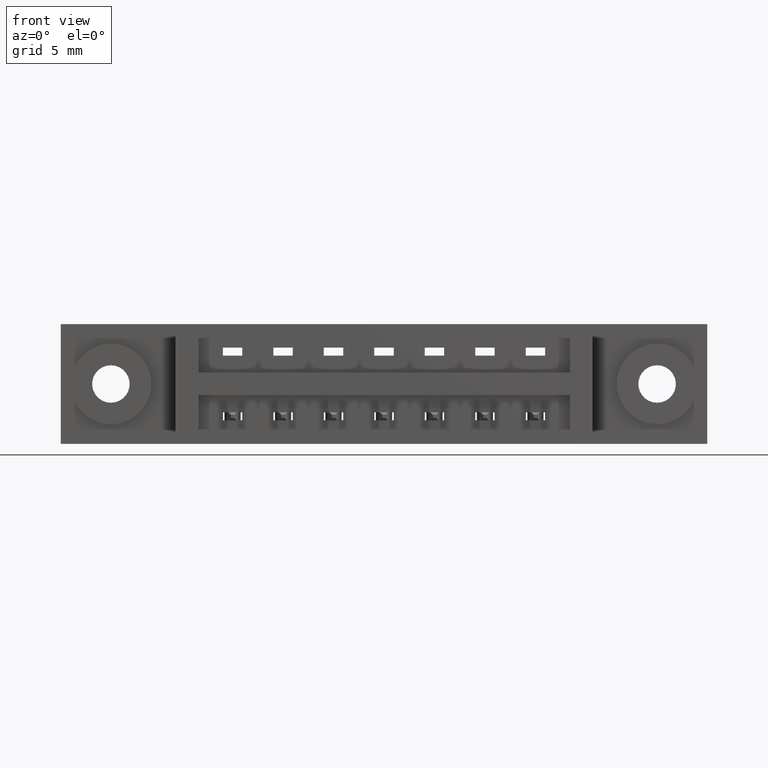
[diagram: clean part render]
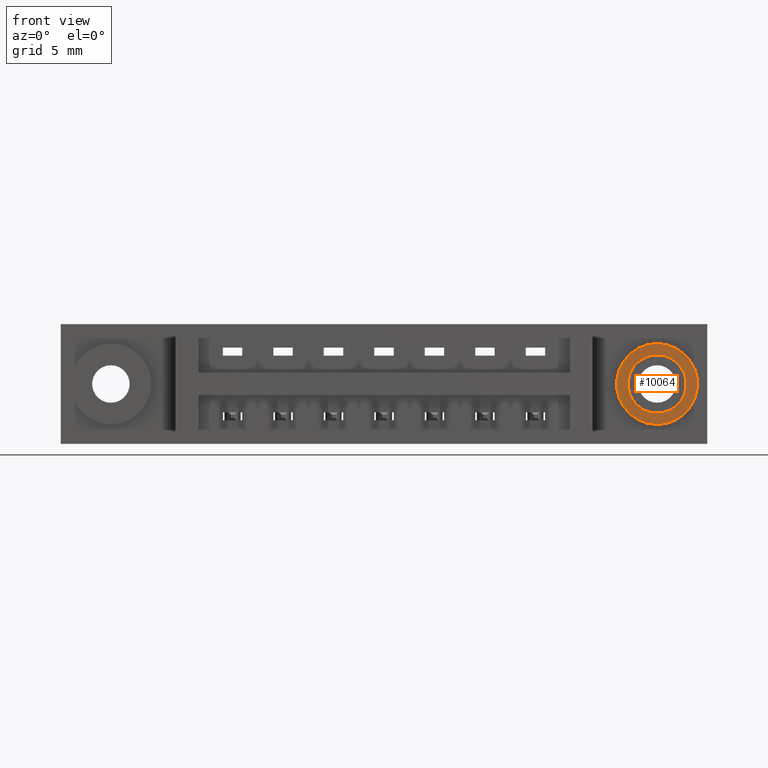
[diagram: same view with one face highlighted and labeled with its STEP entity id]
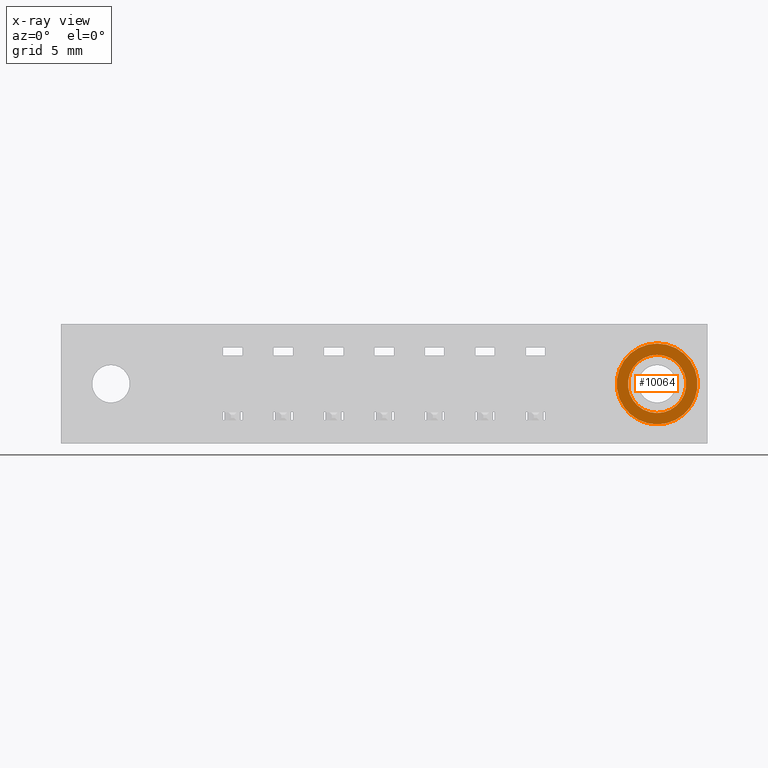
[diagram: x-ray of the same camera — body ghosted, the highlighted face saturated]
A machine part, front view. The second image highlights one B-rep face of the part: STEP entity #10064.
The next image is the same camera in x-ray: the body ghosted, the highlighted face saturated — about 0% of this face is hidden behind the body in this view.
In plain terms, the highlighted planar face has unit normal (-0, -1, -0).
Its self-contained STEP definition (entity closure, byte-faithful):
#204 = VERTEX_POINT ( 'NONE', #4138 ) ;
#605 = CIRCLE ( 'NONE', #6618, 0.08999999999999999700 ) ;
#670 = CARTESIAN_POINT ( 'NONE',  ( 1.530808498934192100E-017, 0.3049999999999998800, 0.1250000000000000600 ) ) ;
#894 = ORIENTED_EDGE ( 'NONE', *, *, #5120, .T. ) ;
#1329 = EDGE_LOOP ( 'NONE', ( #4483, #4257 ) ) ;
#1492 = CIRCLE ( 'NONE', #3806, 0.1250000000000000600 ) ;
#1575 = VERTEX_POINT ( 'NONE', #9321 ) ;
#1804 = CARTESIAN_POINT ( 'NONE',  ( 0.0000000000000000000, 0.3049999999999998800, 0.0000000000000000000 ) ) ;
#2233 = DIRECTION ( 'NONE',  ( -2.465190328815661900E-032, 1.000000000000000000, 0.0000000000000000000 ) ) ;
#2333 = DIRECTION ( 'NONE',  ( -3.408749858497504800E-034, 0.0000000000000000000, 1.000000000000000000 ) ) ;
#2585 = EDGE_CURVE ( 'NONE', #1575, #204, #4239, .T. ) ;
#2888 = ORIENTED_EDGE ( 'NONE', *, *, #9310, .T. ) ;
#3456 = DIRECTION ( 'NONE',  ( -3.408749858497505200E-034, 7.095886083921892200E-051, 1.000000000000000000 ) ) ;
#3716 = VERTEX_POINT ( 'NONE', #670 ) ;
#3806 = AXIS2_PLACEMENT_3D ( 'NONE', #5541, #8012, #2333 ) ;
#4055 = FACE_BOUND ( 'NONE', #1329, .T. ) ;
#4138 = CARTESIAN_POINT ( 'NONE',  ( 1.102182119232617900E-017, 0.3049999999999998800, -0.08999999999999999700 ) ) ;
#4162 = DIRECTION ( 'NONE',  ( 2.465190328815661900E-032, -1.000000000000000000, -0.0000000000000000000 ) ) ;
#4230 = EDGE_LOOP ( 'NONE', ( #2888, #894 ) ) ;
#4239 = CIRCLE ( 'NONE', #5865, 0.08999999999999999700 ) ;
#4257 = ORIENTED_EDGE ( 'NONE', *, *, #4691, .T. ) ;
#4483 = ORIENTED_EDGE ( 'NONE', *, *, #2585, .T. ) ;
#4539 = CARTESIAN_POINT ( 'NONE',  ( 0.0000000000000000000, 0.3049999999999998800, 0.0000000000000000000 ) ) ;
#4691 = EDGE_CURVE ( 'NONE', #204, #1575, #605, .T. ) ;
#4710 = CIRCLE ( 'NONE', #6407, 0.1250000000000000600 ) ;
#5007 = DIRECTION ( 'NONE',  ( -2.465190328815661900E-032, 1.000000000000000000, -7.095886083921900600E-051 ) ) ;
#5120 = EDGE_CURVE ( 'NONE', #3716, #9334, #4710, .T. ) ;
#5541 = CARTESIAN_POINT ( 'NONE',  ( 0.0000000000000000000, 0.3049999999999998800, 0.0000000000000000000 ) ) ;
#5745 = DIRECTION ( 'NONE',  ( -3.408749858497505600E-034, 0.0000000000000000000, 1.000000000000000000 ) ) ;
#5804 = PLANE ( 'NONE',  #9935 ) ;
#5865 = AXIS2_PLACEMENT_3D ( 'NONE', #6559, #4162, #5745 ) ;
#6145 = DIRECTION ( 'NONE',  ( 2.465190328815661900E-032, -1.000000000000000000, -0.0000000000000000000 ) ) ;
#6170 = CARTESIAN_POINT ( 'NONE',  ( 0.0000000000000000000, 0.3049999999999998800, 0.0000000000000000000 ) ) ;
#6407 = AXIS2_PLACEMENT_3D ( 'NONE', #6170, #2233, #9521 ) ;
#6559 = CARTESIAN_POINT ( 'NONE',  ( 0.0000000000000000000, 0.3049999999999998800, 0.0000000000000000000 ) ) ;
#6618 = AXIS2_PLACEMENT_3D ( 'NONE', #4539, #6145, #6975 ) ;
#6975 = DIRECTION ( 'NONE',  ( -3.408749858497505600E-034, 0.0000000000000000000, 1.000000000000000000 ) ) ;
#8012 = DIRECTION ( 'NONE',  ( -2.465190328815661900E-032, 1.000000000000000000, 0.0000000000000000000 ) ) ;
#9292 = FACE_OUTER_BOUND ( 'NONE', #4230, .T. ) ;
#9310 = EDGE_CURVE ( 'NONE', #9334, #3716, #1492, .T. ) ;
#9321 = CARTESIAN_POINT ( 'NONE',  ( -3.067874872647754800E-035, 0.3049999999999998800, 0.08999999999999999700 ) ) ;
#9334 = VERTEX_POINT ( 'NONE', #9634 ) ;
#9521 = DIRECTION ( 'NONE',  ( -3.408749858497504800E-034, 0.0000000000000000000, 1.000000000000000000 ) ) ;
#9634 = CARTESIAN_POINT ( 'NONE',  ( 3.507581643331750100E-034, 0.3049999999999998800, -0.1250000000000000600 ) ) ;
#9935 = AXIS2_PLACEMENT_3D ( 'NONE', #1804, #5007, #3456 ) ;
#10064 = ADVANCED_FACE ( 'NONE', ( #4055, #9292 ), #5804, .T. ) ;